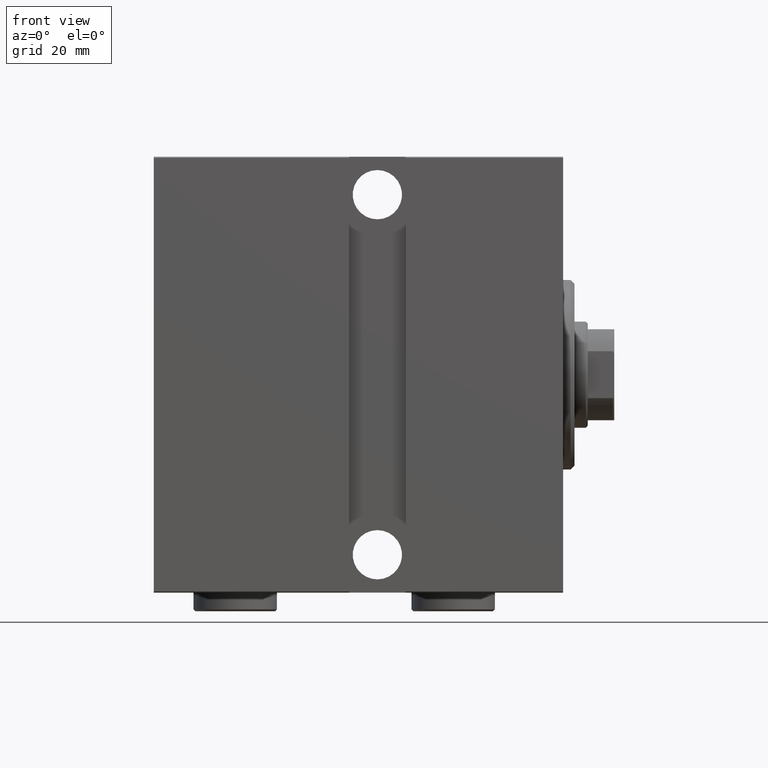
[diagram: clean part render]
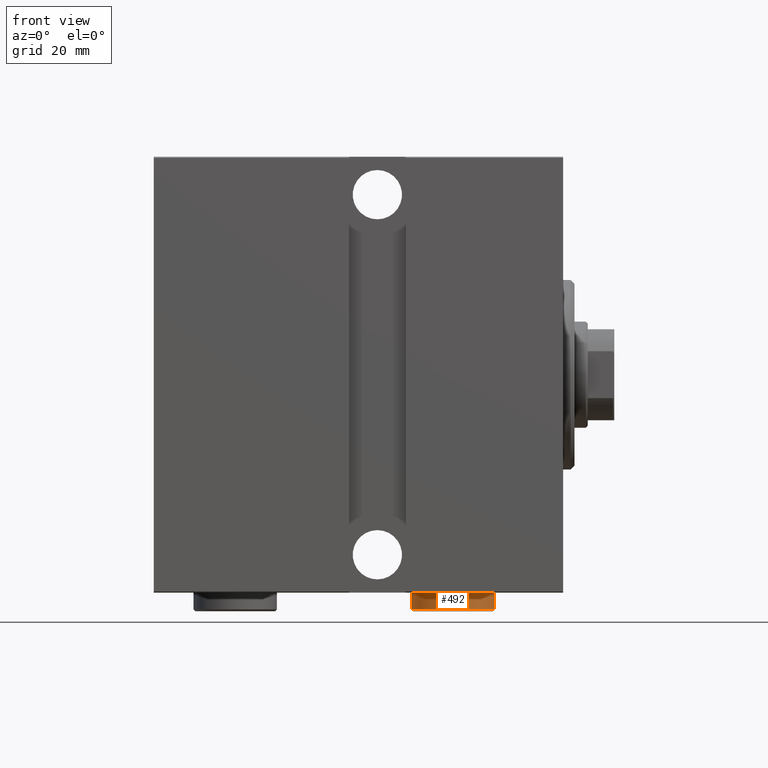
[diagram: same view with one face highlighted and labeled with its STEP entity id]
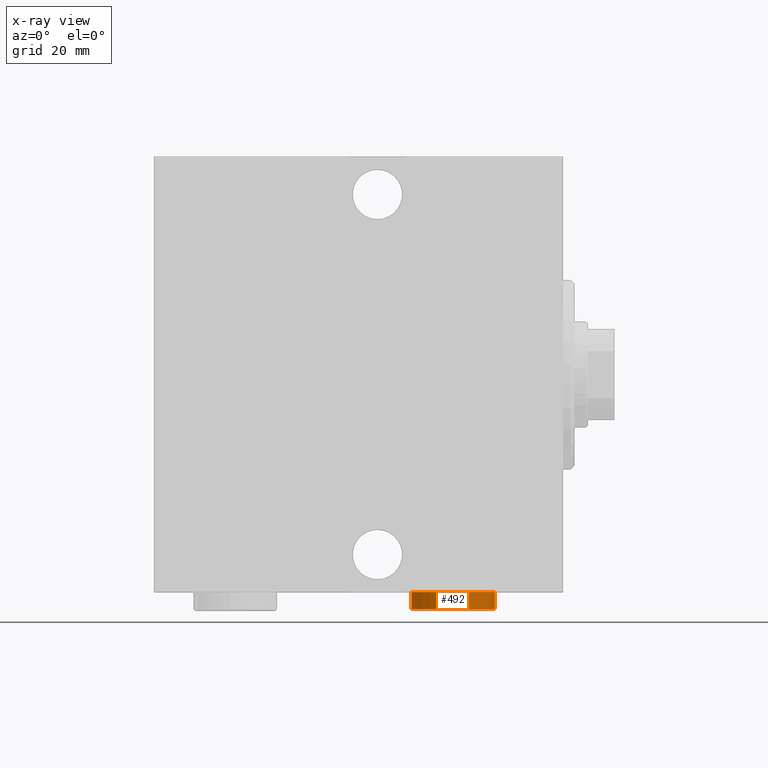
[diagram: x-ray of the same camera — body ghosted, the highlighted face saturated]
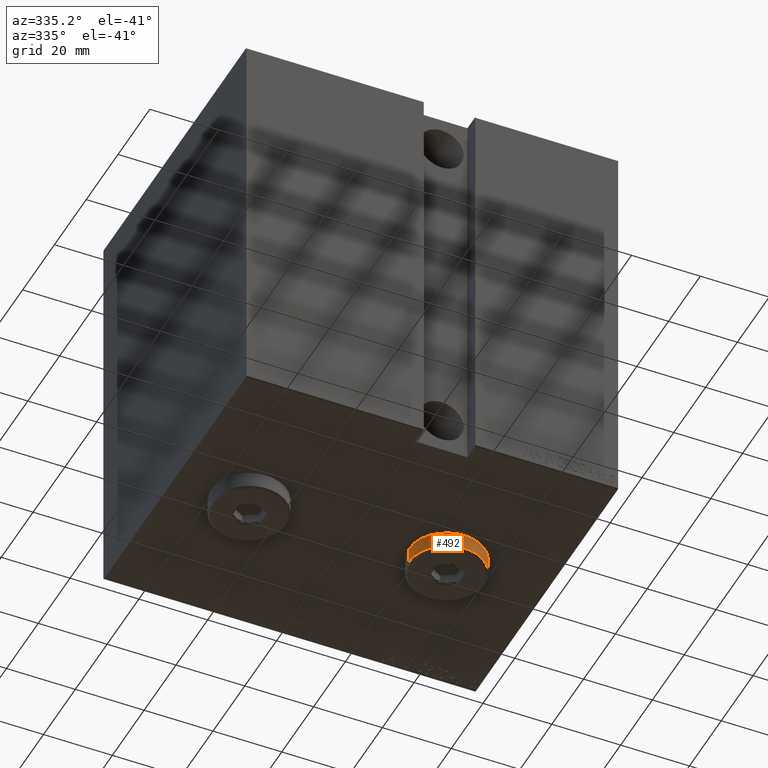
[diagram: same view with one face highlighted and labeled with its STEP entity id]
A machine part, front view. The second image highlights one B-rep face of the part: STEP entity #492.
The next image is the same camera in x-ray: the body ghosted, the highlighted face saturated — about 3% of this face is hidden behind the body in this view.
A second angle (auxiliary view) of the same face is appended — the face is thin or edge-on in the first view.
In plain terms, the highlighted cylindrical surface (partial cylindrical patch) has radius 11 mm, axis along (0, 0, 1).
Its self-contained STEP definition (entity closure, byte-faithful):
#492 = ADVANCED_FACE ( 'NONE', ( #27520 ), #17715, .T. ) ;
#1973 = LINE ( 'NONE', #26904, #39258 ) ;
#3641 = DIRECTION ( 'NONE',  ( 0.000000000000000000, 0.000000000000000000, -1.000000000000000000 ) ) ;
#3689 = DIRECTION ( 'NONE',  ( -0.000000000000000000, -0.000000000000000000, -1.000000000000000000 ) ) ;
#6453 = CARTESIAN_POINT ( 'NONE',  ( -11.00000000000000000, 0.000000000000000000, 4.500000000000003553 ) ) ;
#8516 = EDGE_CURVE ( 'NONE', #13441, #16851, #8548, .T. ) ;
#8548 = CIRCLE ( 'NONE', #39142, 11.00000000000000000 ) ;
#9276 = CARTESIAN_POINT ( 'NONE',  ( 0.000000000000000000, 0.000000000000000000, 0.000000000000000000 ) ) ;
#9971 = DIRECTION ( 'NONE',  ( -0.000000000000000000, -0.000000000000000000, -1.000000000000000000 ) ) ;
#10590 = CARTESIAN_POINT ( 'NONE',  ( 0.000000000000000000, 0.000000000000000000, 5.000000000000000000 ) ) ;
#10857 = VECTOR ( 'NONE', #31741, 1000.000000000000000 ) ;
#12353 = VERTEX_POINT ( 'NONE', #12495 ) ;
#12495 = CARTESIAN_POINT ( 'NONE',  ( 11.00000000000000000, 1.347111479062088405E-15, 4.500000000000003553 ) ) ;
#13060 = AXIS2_PLACEMENT_3D ( 'NONE', #24575, #3641, #17236 ) ;
#13441 = VERTEX_POINT ( 'NONE', #28720 ) ;
#14775 = AXIS2_PLACEMENT_3D ( 'NONE', #10590, #3689, #31065 ) ;
#16851 = VERTEX_POINT ( 'NONE', #21709 ) ;
#17236 = DIRECTION ( 'NONE',  ( 1.000000000000000000, 0.000000000000000000, 0.000000000000000000 ) ) ;
#17444 = EDGE_LOOP ( 'NONE', ( #21502, #39656, #30696, #42266 ) ) ;
#17715 = CYLINDRICAL_SURFACE ( 'NONE', #14775, 11.00000000000000000 ) ;
#18864 = DIRECTION ( 'NONE',  ( 0.000000000000000000, 0.000000000000000000, 1.000000000000000000 ) ) ;
#19922 = EDGE_CURVE ( 'NONE', #12353, #13441, #37558, .T. ) ;
#20179 = EDGE_CURVE ( 'NONE', #29066, #12353, #29415, .T. ) ;
#21502 = ORIENTED_EDGE ( 'NONE', *, *, #20179, .T. ) ;
#21709 = CARTESIAN_POINT ( 'NONE',  ( -11.00000000000000000, 0.000000000000000000, 0.000000000000000000 ) ) ;
#22866 = DIRECTION ( 'NONE',  ( 1.000000000000000000, 0.000000000000000000, 0.000000000000000000 ) ) ;
#24575 = CARTESIAN_POINT ( 'NONE',  ( 0.000000000000000000, 0.000000000000000000, 4.500000000000003553 ) ) ;
#26904 = CARTESIAN_POINT ( 'NONE',  ( -11.00000000000000000, 0.000000000000000000, 5.000000000000000000 ) ) ;
#27520 = FACE_OUTER_BOUND ( 'NONE', #17444, .T. ) ;
#28720 = CARTESIAN_POINT ( 'NONE',  ( 11.00000000000000000, 1.347111479062088405E-15, 0.000000000000000000 ) ) ;
#29066 = VERTEX_POINT ( 'NONE', #6453 ) ;
#29415 = CIRCLE ( 'NONE', #13060, 11.00000000000000000 ) ;
#30696 = ORIENTED_EDGE ( 'NONE', *, *, #8516, .T. ) ;
#31065 = DIRECTION ( 'NONE',  ( -1.000000000000000000, 0.000000000000000000, 0.000000000000000000 ) ) ;
#31074 = CARTESIAN_POINT ( 'NONE',  ( 11.00000000000000000, 1.347111479062088405E-15, 5.000000000000000000 ) ) ;
#31741 = DIRECTION ( 'NONE',  ( -0.000000000000000000, -0.000000000000000000, -1.000000000000000000 ) ) ;
#35302 = EDGE_CURVE ( 'NONE', #29066, #16851, #1973, .T. ) ;
#37558 = LINE ( 'NONE', #31074, #10857 ) ;
#39142 = AXIS2_PLACEMENT_3D ( 'NONE', #9276, #18864, #22866 ) ;
#39258 = VECTOR ( 'NONE', #9971, 1000.000000000000000 ) ;
#39656 = ORIENTED_EDGE ( 'NONE', *, *, #19922, .T. ) ;
#42266 = ORIENTED_EDGE ( 'NONE', *, *, #35302, .F. ) ;